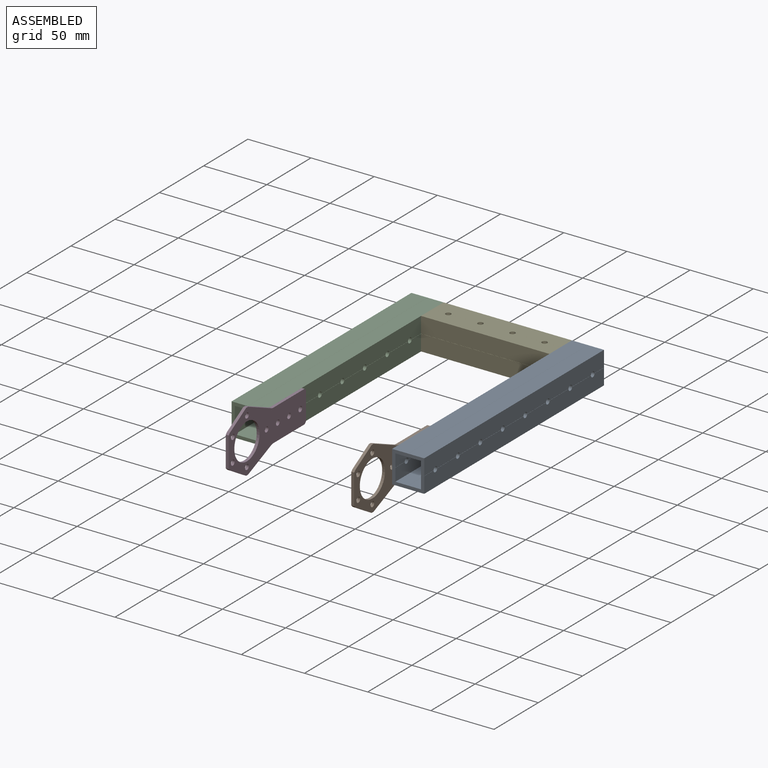
[diagram: assembled view]
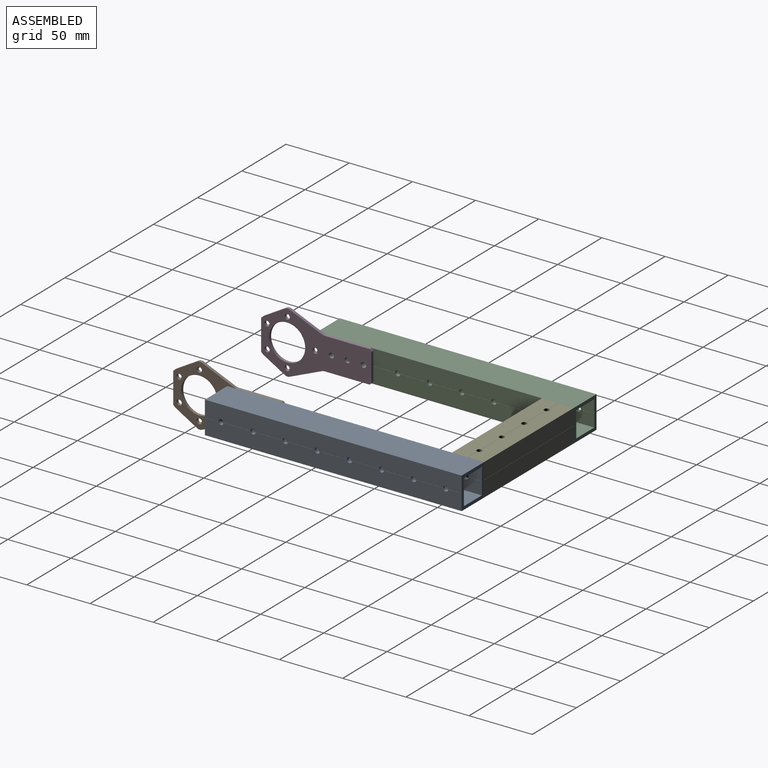
[diagram: assembled view, second angle]
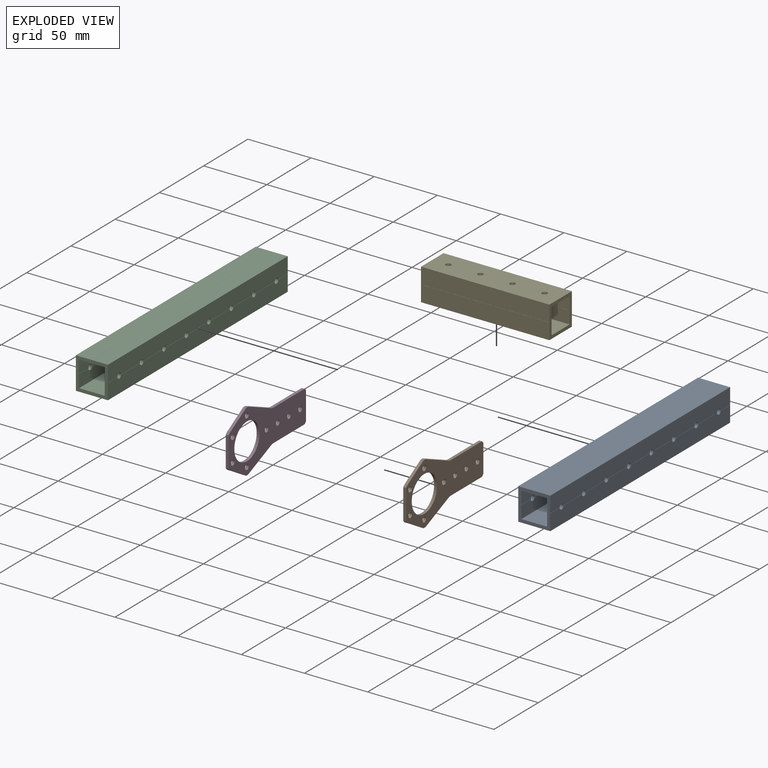
[diagram: exploded view]
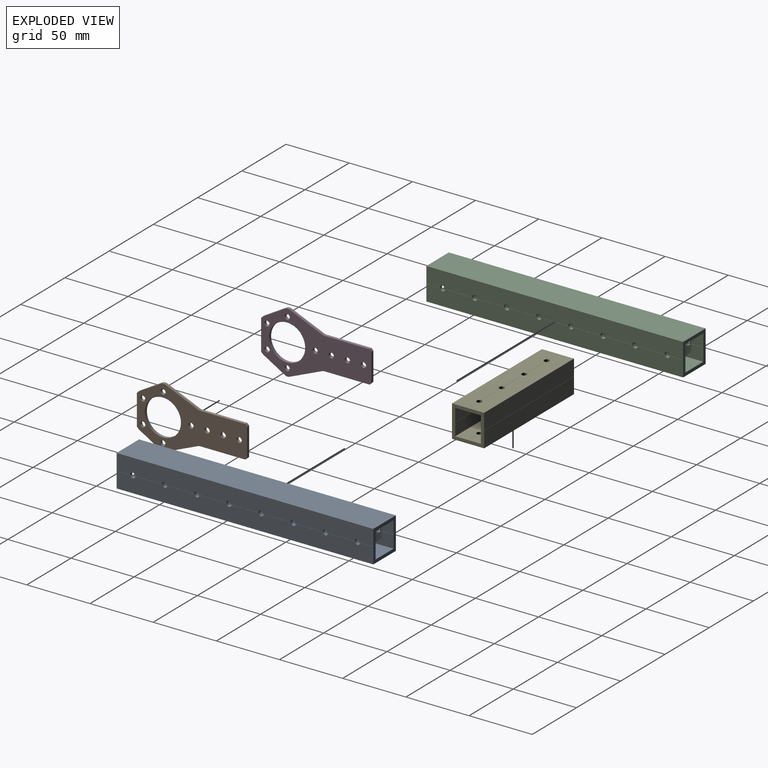
[diagram: exploded view, second angle]
ASSEMBLY  parts=5 mates=4
PART A: 114 faces, bbox 25.4x25.4x203.2 mm
  f0: plane 203.2x12.62mm, normal (0,-1,0), area 2565.2mm2, adj f11,f24,f48,f113
  f1: plane 203.2x12.62mm, normal (0,1,0), area 2565.2mm2, adj f10,f16,f48,f113
  f2: plane 203.2x12.62mm, normal (0,1,0), area 2565.2mm2, adj f5,f17,f48,f113
  f3: plane 203.2x12.62mm, normal (0,-1,0), area 2565.2mm2, adj f8,f25,f48,f113
  f4: plane 203.2x10.08mm, normal (1,0,0), area 1997.7mm2, adj f13,f31,f32,f33,f34,f35,f36,f37
  f5: plane 203.2x12.62mm, normal (-1,0,0), area 2513.8mm2, adj f2,f29,f32,f33,f34,f35,f36,f37
  f6: plane 203.2x10.08mm, normal (0,1,0), area 2049mm2, adj f14,f26,f48,f113
  f7: plane 203.2x10.08mm, normal (-1,0,0), area 1997.7mm2, adj f15,f23,f40,f41,f42,f43,f44,f45
  f8: plane 203.2x12.62mm, normal (1,0,0), area 2513.8mm2, adj f3,f21,f40,f41,f42,f43,f44,f45
  f9: plane 203.2x10.08mm, normal (0,-1,0), area 2049mm2, adj f12,f18,f48,f113
  f10: plane 203.2x12.62mm, normal (1,0,0), area 2513.8mm2, adj f1,f20,f40,f41,f42,f43,f44,f45
  f11: plane 203.2x12.62mm, normal (-1,0,0), area 2513.8mm2, adj f0,f28,f32,f33,f34,f35,f36,f37
  f12: plane 203.2x10.08mm, normal (-1,0,0), area 1997.7mm2, adj f9,f22,f40,f41,f42,f43,f44,f45
  f13: plane 203.2x10.08mm, normal (0,-1,0), area 2049mm2, adj f4,f19,f48,f113
  f14: plane 203.2x10.08mm, normal (1,0,0), area 1997.7mm2, adj f6,f30,f32,f33,f34,f35,f36,f37
  f15: plane 203.2x10.08mm, normal (0,1,0), area 2049mm2, adj f7,f27,f48,f113
  f16: plane 203.2x0.08mm, normal (-0.71,0.71,0), area 21.9mm2, adj f1,f17,f48,f113
  f17: plane 203.2x0.08mm, normal (0.71,0.71,0), area 21.9mm2, adj f2,f16,f48,f113
  f18: plane 203.2x0.08mm, normal (-0.71,-0.71,0), area 21.9mm2, adj f9,f19,f48,f113
  f19: plane 203.2x0.08mm, normal (0.71,-0.71,0), area 21.9mm2, adj f13,f18,f48,f113
  f20: plane 10.63x0.08mm, normal (0.71,-0.71,0), area 1.1mm2, adj f10,f21,f47,f113
  f21: plane 10.63x0.08mm, normal (0.71,0.71,0), area 1.1mm2, adj f8,f20,f47,f113
  f22: plane 10.63x0.08mm, normal (-0.71,-0.71,0), area 1.1mm2, adj f12,f23,f47,f113
  f23: plane 10.63x0.08mm, normal (-0.71,0.71,0), area 1.1mm2, adj f7,f22,f47,f113
  f24: plane 203.2x0.08mm, normal (0.71,-0.71,0), area 21.9mm2, adj f0,f25,f48,f113
  f25: plane 203.2x0.08mm, normal (-0.71,-0.71,0), area 21.9mm2, adj f3,f24,f48,f113
  f26: plane 203.2x0.08mm, normal (0.71,0.71,0), area 21.9mm2, adj f6,f27,f48,f113
  f27: plane 203.2x0.08mm, normal (-0.71,0.71,0), area 21.9mm2, adj f15,f26,f48,f113
  f28: plane 10.63x0.08mm, normal (-0.71,0.71,0), area 1.1mm2, adj f11,f29,f39,f113
  f29: plane 10.63x0.08mm, normal (-0.71,-0.71,0), area 1.1mm2, adj f5,f28,f39,f113
  f30: plane 10.63x0.08mm, normal (0.71,0.71,0), area 1.1mm2, adj f14,f31,f39,f113
  f31: plane 10.63x0.08mm, normal (0.71,-0.71,0), area 1.1mm2, adj f4,f30,f39,f113
  f32: cylinder r=2.07mm len=4.14mm, axis (1,0,0), area 33mm2, adj f4,f5,f11,f14,f81,f82,f83,f84
  f33: cylinder r=2.07mm len=4.14mm, axis (1,0,0), area 33mm2, adj f4,f5,f11,f14,f81,f82,f85,f86
  f34: cylinder r=2.07mm len=4.14mm, axis (1,0,0), area 33mm2, adj f4,f5,f11,f14,f85,f86,f87,f88
  f35: cylinder r=2.07mm len=4.14mm, axis (1,0,0), area 33mm2, adj f4,f5,f11,f14,f87,f88,f89,f90
  f36: cylinder r=2.07mm len=4.14mm, axis (1,0,0), area 33mm2, adj f4,f5,f11,f14,f89,f90,f91,f92
  f37: cylinder r=2.07mm len=4.14mm, axis (1,0,0), area 33mm2, adj f4,f5,f11,f14,f91,f92,f93,f94
  f38: cylinder r=2.07mm len=4.14mm, axis (1,0,0), area 33mm2, adj f4,f5,f11,f14,f93,f94,f95,f96
  f39: cylinder r=2.07mm len=4.14mm, axis (1,0,0), area 33mm2, adj f4,f5,f11,f14,f28,f29,f30,f31
  f40: cylinder r=2.07mm len=4.14mm, axis (1,0,0), area 33mm2, adj f7,f8,f10,f12,f49,f50,f51,f52
  f41: cylinder r=2.07mm len=4.14mm, axis (1,0,0), area 33mm2, adj f7,f8,f10,f12,f51,f52,f53,f54
  f42: cylinder r=2.07mm len=4.14mm, axis (1,0,0), area 33mm2, adj f7,f8,f10,f12,f53,f54,f55,f56
  f43: cylinder r=2.07mm len=4.14mm, axis (1,0,0), area 33mm2, adj f7,f8,f10,f12,f55,f56,f57,f58
  f44: cylinder r=2.07mm len=4.14mm, axis (1,0,0), area 33mm2, adj f7,f8,f10,f12,f57,f58,f59,f60
  f45: cylinder r=2.07mm len=4.14mm, axis (1,0,0), area 33mm2, adj f7,f8,f10,f12,f59,f60,f61,f62
  f46: cylinder r=2.07mm len=4.14mm, axis (1,0,0), area 33mm2, adj f7,f8,f10,f12,f61,f62,f63,f64
  f47: cylinder r=2.07mm len=4.14mm, axis (1,0,0), area 33mm2, adj f7,f8,f10,f12,f20,f21,f22,f23
  f48: plane 25.4x25.4mm, normal (0,0,-1), area 232.2mm2, adj f0,f1,f2,f3,f4,f5,f6,f7
  f49: plane 10.63x0.08mm, normal (0.71,-0.71,0), area 1.1mm2, adj f10,f40,f48,f50
  f50: plane 10.63x0.08mm, normal (0.71,0.71,0), area 1.1mm2, adj f8,f40,f48,f49
  f51: plane 21.26x0.08mm, normal (0.71,-0.71,0), area 2.3mm2, adj f10,f40,f41,f52
  f52: plane 21.26x0.08mm, normal (0.71,0.71,0), area 2.3mm2, adj f8,f40,f41,f51
  f53: plane 21.26x0.08mm, normal (0.71,-0.71,0), area 2.3mm2, adj f10,f41,f42,f54
  f54: plane 21.26x0.08mm, normal (0.71,0.71,0), area 2.3mm2, adj f8,f41,f42,f53
  f55: plane 21.26x0.08mm, normal (0.71,-0.71,0), area 2.3mm2, adj f10,f42,f43,f56
  f56: plane 21.26x0.08mm, normal (0.71,0.71,0), area 2.3mm2, adj f8,f42,f43,f55
  f57: plane 21.26x0.08mm, normal (0.71,-0.71,0), area 2.3mm2, adj f10,f43,f44,f58
  f58: plane 21.26x0.08mm, normal (0.71,0.71,0), area 2.3mm2, adj f8,f43,f44,f57
  f59: plane 21.26x0.08mm, normal (0.71,-0.71,0), area 2.3mm2, adj f10,f44,f45,f60
  f60: plane 21.26x0.08mm, normal (0.71,0.71,0), area 2.3mm2, adj f8,f44,f45,f59
  f61: plane 21.26x0.08mm, normal (0.71,-0.71,0), area 2.3mm2, adj f10,f45,f46,f62
  f62: plane 21.26x0.08mm, normal (0.71,0.71,0), area 2.3mm2, adj f8,f45,f46,f61
  f63: plane 21.26x0.08mm, normal (0.71,-0.71,0), area 2.3mm2, adj f10,f46,f47,f64
  f64: plane 21.26x0.08mm, normal (0.71,0.71,0), area 2.3mm2, adj f8,f46,f47,f63
  f65: plane 10.63x0.08mm, normal (-0.71,-0.71,0), area 1.1mm2, adj f12,f40,f48,f66
  f66: plane 10.63x0.08mm, normal (-0.71,0.71,0), area 1.1mm2, adj f7,f40,f48,f65
  f67: plane 21.26x0.08mm, normal (-0.71,-0.71,0), area 2.3mm2, adj f12,f40,f41,f68
  f68: plane 21.26x0.08mm, normal (-0.71,0.71,0), area 2.3mm2, adj f7,f40,f41,f67
  f69: plane 21.26x0.08mm, normal (-0.71,-0.71,0), area 2.3mm2, adj f12,f41,f42,f70
  f70: plane 21.26x0.08mm, normal (-0.71,0.71,0), area 2.3mm2, adj f7,f41,f42,f69
  f71: plane 21.26x0.08mm, normal (-0.71,-0.71,0), area 2.3mm2, adj f12,f42,f43,f72
  f72: plane 21.26x0.08mm, normal (-0.71,0.71,0), area 2.3mm2, adj f7,f42,f43,f71
  f73: plane 21.26x0.08mm, normal (-0.71,-0.71,0), area 2.3mm2, adj f12,f43,f44,f74
  f74: plane 21.26x0.08mm, normal (-0.71,0.71,0), area 2.3mm2, adj f7,f43,f44,f73
  f75: plane 21.26x0.08mm, normal (-0.71,-0.71,0), area 2.3mm2, adj f12,f44,f45,f76
  f76: plane 21.26x0.08mm, normal (-0.71,0.71,0), area 2.3mm2, adj f7,f44,f45,f75
  f77: plane 21.26x0.08mm, normal (-0.71,-0.71,0), area 2.3mm2, adj f12,f45,f46,f78
  f78: plane 21.26x0.08mm, normal (-0.71,0.71,0), area 2.3mm2, adj f7,f45,f46,f77
  f79: plane 21.26x0.08mm, normal (-0.71,-0.71,0), area 2.3mm2, adj f12,f46,f47,f80
  f80: plane 21.26x0.08mm, normal (-0.71,0.71,0), area 2.3mm2, adj f7,f46,f47,f79
  f81: plane 21.26x0.08mm, normal (-0.71,0.71,0), area 2.3mm2, adj f11,f32,f33,f82
  f82: plane 21.26x0.08mm, normal (-0.71,-0.71,0), area 2.3mm2, adj f5,f32,f33,f81
  f83: plane 10.63x0.08mm, normal (-0.71,0.71,0), area 1.1mm2, adj f11,f32,f48,f84
  f84: plane 10.63x0.08mm, normal (-0.71,-0.71,0), area 1.1mm2, adj f5,f32,f48,f83
  f85: plane 21.26x0.08mm, normal (-0.71,0.71,0), area 2.3mm2, adj f11,f33,f34,f86
  f86: plane 21.26x0.08mm, normal (-0.71,-0.71,0), area 2.3mm2, adj f5,f33,f34,f85
  f87: plane 21.26x0.08mm, normal (-0.71,0.71,0), area 2.3mm2, adj f11,f34,f35,f88
  f88: plane 21.26x0.08mm, normal (-0.71,-0.71,0), area 2.3mm2, adj f5,f34,f35,f87
  f89: plane 21.26x0.08mm, normal (-0.71,0.71,0), area 2.3mm2, adj f11,f35,f36,f90
  f90: plane 21.26x0.08mm, normal (-0.71,-0.71,0), area 2.3mm2, adj f5,f35,f36,f89
  f91: plane 21.26x0.08mm, normal (-0.71,0.71,0), area 2.3mm2, adj f11,f36,f37,f92
  f92: plane 21.26x0.08mm, normal (-0.71,-0.71,0), area 2.3mm2, adj f5,f36,f37,f91
  f93: plane 21.26x0.08mm, normal (-0.71,0.71,0), area 2.3mm2, adj f11,f37,f38,f94
  f94: plane 21.26x0.08mm, normal (-0.71,-0.71,0), area 2.3mm2, adj f5,f37,f38,f93
  f95: plane 21.26x0.08mm, normal (-0.71,0.71,0), area 2.3mm2, adj f11,f38,f39,f96
  f96: plane 21.26x0.08mm, normal (-0.71,-0.71,0), area 2.3mm2, adj f5,f38,f39,f95
  f97: plane 21.26x0.08mm, normal (0.71,0.71,0), area 2.3mm2, adj f14,f32,f33,f98
  f98: plane 21.26x0.08mm, normal (0.71,-0.71,0), area 2.3mm2, adj f4,f32,f33,f97
  f99: plane 10.63x0.08mm, normal (0.71,0.71,0), area 1.1mm2, adj f14,f32,f48,f100
  f100: plane 10.63x0.08mm, normal (0.71,-0.71,0), area 1.1mm2, adj f4,f32,f48,f99
  f101: plane 21.26x0.08mm, normal (0.71,0.71,0), area 2.3mm2, adj f14,f33,f34,f102
  f102: plane 21.26x0.08mm, normal (0.71,-0.71,0), area 2.3mm2, adj f4,f33,f34,f101
  f103: plane 21.26x0.08mm, normal (0.71,0.71,0), area 2.3mm2, adj f14,f34,f35,f104
  f104: plane 21.26x0.08mm, normal (0.71,-0.71,0), area 2.3mm2, adj f4,f34,f35,f103
  f105: plane 21.26x0.08mm, normal (0.71,0.71,0), area 2.3mm2, adj f14,f35,f36,f106
  f106: plane 21.26x0.08mm, normal (0.71,-0.71,0), area 2.3mm2, adj f4,f35,f36,f105
  f107: plane 21.26x0.08mm, normal (0.71,0.71,0), area 2.3mm2, adj f14,f36,f37,f108
  f108: plane 21.26x0.08mm, normal (0.71,-0.71,0), area 2.3mm2, adj f4,f36,f37,f107
  f109: plane 21.26x0.08mm, normal (0.71,0.71,0), area 2.3mm2, adj f14,f37,f38,f110
  f110: plane 21.26x0.08mm, normal (0.71,-0.71,0), area 2.3mm2, adj f4,f37,f38,f109
  f111: plane 21.26x0.08mm, normal (0.71,0.71,0), area 2.3mm2, adj f14,f38,f39,f112
  f112: plane 21.26x0.08mm, normal (0.71,-0.71,0), area 2.3mm2, adj f4,f38,f39,f111
  f113: plane 25.4x25.4mm, normal (0,0,1), area 232.2mm2, adj f0,f1,f2,f3,f4,f5,f6,f7
PART B: 27 faces, bbox 48.6x87.3x2.3 mm
  f0: cylinder r=2.07mm len=4.14mm, axis (0,0,-1), area 29.7mm2, adj f9,f10
  f1: cylinder r=2.07mm len=4.14mm, axis (0,0,-1), area 29.7mm2, adj f9,f10
  f2: cylinder r=2.07mm len=4.14mm, axis (0,0,-1), area 29.7mm2, adj f9,f10
  f3: cylinder r=2.07mm len=4.14mm, axis (0,0,-1), area 29.7mm2, adj f9,f10
  f4: cylinder r=2.07mm len=4.14mm, axis (0,0,-1), area 29.7mm2, adj f9,f10
  f5: cylinder r=2.07mm len=4.14mm, axis (0,0,-1), area 29.7mm2, adj f9,f10
  f6: cylinder r=2.07mm len=4.14mm, axis (0,0,-1), area 29.7mm2, adj f9,f10
  f7: cylinder r=2.07mm len=4.14mm, axis (0,0,-1), area 29.7mm2, adj f9,f10
  f8: cylinder r=14.29mm len=28.58mm, axis (0,0,-1), area 205.2mm2, adj f9,f10
  f9: plane 87.31x48.56mm, normal (0,0,1), area 2060.7mm2, adj f0,f1,f2,f3,f4,f5,f6,f7
  f10: plane 87.31x48.56mm, normal (0,0,-1), area 2060.7mm2, adj f0,f1,f2,f3,f4,f5,f6,f7
  f11: plane 22.35x2.29mm, normal (0,-1,0), area 51.1mm2, adj f9,f10,f25,f26
  f12: plane 35.28x2.29mm, normal (-1,0,0), area 80.7mm2, adj f9,f10,f20,f26
  f13: plane 35.28x2.29mm, normal (1,0,0), area 80.7mm2, adj f9,f10,f19,f25
  f14: plane 18.21x10.69mm, normal (-0.86,0.51,0), area 48.3mm2, adj f9,f10,f21,f24
  f15: plane 26.13x11.08mm, normal (-0.92,-0.39,0), area 64.9mm2, adj f9,f10,f20,f24
  f16: plane 18.21x10.69mm, normal (0.86,0.51,0), area 48.3mm2, adj f9,f10,f22,f23
  f17: plane 26.13x11.08mm, normal (0.92,-0.39,0), area 64.9mm2, adj f9,f10,f19,f23
  f18: plane 24.14x2.29mm, normal (0,1,0), area 55.2mm2, adj f9,f10,f21,f22
  f19: cylinder r=6.35mm len=2.48mm, axis (0,0,1), area 5.8mm2, adj f9,f10,f13,f17
  f20: cylinder r=6.35mm len=2.48mm, axis (0,0,1), area 5.8mm2, adj f9,f10,f12,f15
  f21: plane 2.29x1.53mm, normal (-0.71,0.71,0), area 4.9mm2, adj f9,f10,f14,f18
  f22: plane 2.29x1.53mm, normal (0.71,0.71,0), area 4.9mm2, adj f9,f10,f16,f18
  f23: plane 2.29x2.16mm, normal (1,0,0), area 4.9mm2, adj f9,f10,f16,f17
  f24: plane 2.29x2.16mm, normal (-1,0,0), area 4.9mm2, adj f9,f10,f14,f15
  f25: plane 2.29x1.53mm, normal (0.71,-0.71,0), area 4.9mm2, adj f9,f10,f11,f13
  f26: plane 2.29x1.53mm, normal (-0.71,-0.71,0), area 4.9mm2, adj f9,f10,f11,f12
PART C: same geometry as A
PART D: same geometry as B
PART E: 74 faces, bbox 25.4x25.4x101.6 mm
  f0: plane 101.6x12.62mm, normal (0,-1,0), area 1282.6mm2, adj f11,f20,f40,f73
  f1: plane 101.6x12.62mm, normal (0,1,0), area 1282.6mm2, adj f10,f16,f40,f73
  f2: plane 101.6x12.62mm, normal (0,1,0), area 1282.6mm2, adj f5,f17,f40,f73
  f3: plane 101.6x12.62mm, normal (0,-1,0), area 1282.6mm2, adj f8,f21,f40,f73
  f4: plane 101.6x10.08mm, normal (1,0,0), area 998.9mm2, adj f13,f31,f32,f33,f34,f35,f40,f66
  f5: plane 101.6x12.62mm, normal (-1,0,0), area 1256.9mm2, adj f2,f29,f32,f33,f34,f35,f40,f58
  f6: plane 101.6x10.08mm, normal (0,1,0), area 1024.5mm2, adj f14,f22,f40,f73
  f7: plane 101.6x10.08mm, normal (-1,0,0), area 998.9mm2, adj f15,f27,f36,f37,f38,f39,f40,f50
  f8: plane 101.6x12.62mm, normal (1,0,0), area 1256.9mm2, adj f3,f25,f36,f37,f38,f39,f40,f42
  f9: plane 101.6x10.08mm, normal (0,-1,0), area 1024.5mm2, adj f12,f18,f40,f73
  f10: plane 101.6x12.62mm, normal (1,0,0), area 1256.9mm2, adj f1,f24,f36,f37,f38,f39,f40,f41
  f11: plane 101.6x12.62mm, normal (-1,0,0), area 1256.9mm2, adj f0,f28,f32,f33,f34,f35,f40,f57
  f12: plane 101.6x10.08mm, normal (-1,0,0), area 998.9mm2, adj f9,f26,f36,f37,f38,f39,f40,f49
  f13: plane 101.6x10.08mm, normal (0,-1,0), area 1024.5mm2, adj f4,f19,f40,f73
  f14: plane 101.6x10.08mm, normal (1,0,0), area 998.9mm2, adj f6,f30,f32,f33,f34,f35,f40,f65
  f15: plane 101.6x10.08mm, normal (0,1,0), area 1024.5mm2, adj f7,f23,f40,f73
  f16: plane 101.6x0.08mm, normal (-0.71,0.71,0), area 10.9mm2, adj f1,f17,f40,f73
  f17: plane 101.6x0.08mm, normal (0.71,0.71,0), area 10.9mm2, adj f2,f16,f40,f73
  f18: plane 101.6x0.08mm, normal (-0.71,-0.71,0), area 10.9mm2, adj f9,f19,f40,f73
  f19: plane 101.6x0.08mm, normal (0.71,-0.71,0), area 10.9mm2, adj f13,f18,f40,f73
  f20: plane 101.6x0.08mm, normal (0.71,-0.71,0), area 10.9mm2, adj f0,f21,f40,f73
  f21: plane 101.6x0.08mm, normal (-0.71,-0.71,0), area 10.9mm2, adj f3,f20,f40,f73
  f22: plane 101.6x0.08mm, normal (0.71,0.71,0), area 10.9mm2, adj f6,f23,f40,f73
  f23: plane 101.6x0.08mm, normal (-0.71,0.71,0), area 10.9mm2, adj f15,f22,f40,f73
  f24: plane 10.63x0.08mm, normal (0.71,-0.71,0), area 1.1mm2, adj f10,f25,f39,f73
  f25: plane 10.63x0.08mm, normal (0.71,0.71,0), area 1.1mm2, adj f8,f24,f39,f73
  f26: plane 10.63x0.08mm, normal (-0.71,-0.71,0), area 1.1mm2, adj f12,f27,f39,f73
  f27: plane 10.63x0.08mm, normal (-0.71,0.71,0), area 1.1mm2, adj f7,f26,f39,f73
  f28: plane 10.63x0.08mm, normal (-0.71,0.71,0), area 1.1mm2, adj f11,f29,f35,f73
  f29: plane 10.63x0.08mm, normal (-0.71,-0.71,0), area 1.1mm2, adj f5,f28,f35,f73
  f30: plane 10.63x0.08mm, normal (0.71,0.71,0), area 1.1mm2, adj f14,f31,f35,f73
  f31: plane 10.63x0.08mm, normal (0.71,-0.71,0), area 1.1mm2, adj f4,f30,f35,f73
  f32: cylinder r=2.07mm len=4.14mm, axis (1,0,0), area 33mm2, adj f4,f5,f11,f14,f57,f58,f59,f60
  f33: cylinder r=2.07mm len=4.14mm, axis (1,0,0), area 33mm2, adj f4,f5,f11,f14,f57,f58,f61,f62
  f34: cylinder r=2.07mm len=4.14mm, axis (1,0,0), area 33mm2, adj f4,f5,f11,f14,f61,f62,f63,f64
  f35: cylinder r=2.07mm len=4.14mm, axis (1,0,0), area 33mm2, adj f4,f5,f11,f14,f28,f29,f30,f31
  f36: cylinder r=2.07mm len=4.14mm, axis (1,0,0), area 33mm2, adj f7,f8,f10,f12,f41,f42,f43,f44
  f37: cylinder r=2.07mm len=4.14mm, axis (1,0,0), area 33mm2, adj f7,f8,f10,f12,f43,f44,f45,f46
  f38: cylinder r=2.07mm len=4.14mm, axis (1,0,0), area 33mm2, adj f7,f8,f10,f12,f45,f46,f47,f48
  f39: cylinder r=2.07mm len=4.14mm, axis (1,0,0), area 33mm2, adj f7,f8,f10,f12,f24,f25,f26,f27
  f40: plane 25.4x25.4mm, normal (0,0,-1), area 232.2mm2, adj f0,f1,f2,f3,f4,f5,f6,f7
  f41: plane 10.63x0.08mm, normal (0.71,-0.71,0), area 1.1mm2, adj f10,f36,f40,f42
  f42: plane 10.63x0.08mm, normal (0.71,0.71,0), area 1.1mm2, adj f8,f36,f40,f41
  f43: plane 21.26x0.08mm, normal (0.71,-0.71,0), area 2.3mm2, adj f10,f36,f37,f44
  f44: plane 21.26x0.08mm, normal (0.71,0.71,0), area 2.3mm2, adj f8,f36,f37,f43
  f45: plane 21.26x0.08mm, normal (0.71,-0.71,0), area 2.3mm2, adj f10,f37,f38,f46
  f46: plane 21.26x0.08mm, normal (0.71,0.71,0), area 2.3mm2, adj f8,f37,f38,f45
  f47: plane 21.26x0.08mm, normal (0.71,-0.71,0), area 2.3mm2, adj f10,f38,f39,f48
  f48: plane 21.26x0.08mm, normal (0.71,0.71,0), area 2.3mm2, adj f8,f38,f39,f47
  f49: plane 10.63x0.08mm, normal (-0.71,-0.71,0), area 1.1mm2, adj f12,f36,f40,f50
  f50: plane 10.63x0.08mm, normal (-0.71,0.71,0), area 1.1mm2, adj f7,f36,f40,f49
  f51: plane 21.26x0.08mm, normal (-0.71,-0.71,0), area 2.3mm2, adj f12,f36,f37,f52
  f52: plane 21.26x0.08mm, normal (-0.71,0.71,0), area 2.3mm2, adj f7,f36,f37,f51
  f53: plane 21.26x0.08mm, normal (-0.71,-0.71,0), area 2.3mm2, adj f12,f37,f38,f54
  f54: plane 21.26x0.08mm, normal (-0.71,0.71,0), area 2.3mm2, adj f7,f37,f38,f53
  f55: plane 21.26x0.08mm, normal (-0.71,-0.71,0), area 2.3mm2, adj f12,f38,f39,f56
  f56: plane 21.26x0.08mm, normal (-0.71,0.71,0), area 2.3mm2, adj f7,f38,f39,f55
  f57: plane 21.26x0.08mm, normal (-0.71,0.71,0), area 2.3mm2, adj f11,f32,f33,f58
  f58: plane 21.26x0.08mm, normal (-0.71,-0.71,0), area 2.3mm2, adj f5,f32,f33,f57
  f59: plane 10.63x0.08mm, normal (-0.71,0.71,0), area 1.1mm2, adj f11,f32,f40,f60
  f60: plane 10.63x0.08mm, normal (-0.71,-0.71,0), area 1.1mm2, adj f5,f32,f40,f59
  f61: plane 21.26x0.08mm, normal (-0.71,0.71,0), area 2.3mm2, adj f11,f33,f34,f62
  f62: plane 21.26x0.08mm, normal (-0.71,-0.71,0), area 2.3mm2, adj f5,f33,f34,f61
  f63: plane 21.26x0.08mm, normal (-0.71,0.71,0), area 2.3mm2, adj f11,f34,f35,f64
  f64: plane 21.26x0.08mm, normal (-0.71,-0.71,0), area 2.3mm2, adj f5,f34,f35,f63
  f65: plane 21.26x0.08mm, normal (0.71,0.71,0), area 2.3mm2, adj f14,f32,f33,f66
  f66: plane 21.26x0.08mm, normal (0.71,-0.71,0), area 2.3mm2, adj f4,f32,f33,f65
  f67: plane 10.63x0.08mm, normal (0.71,0.71,0), area 1.1mm2, adj f14,f32,f40,f68
  f68: plane 10.63x0.08mm, normal (0.71,-0.71,0), area 1.1mm2, adj f4,f32,f40,f67
  f69: plane 21.26x0.08mm, normal (0.71,0.71,0), area 2.3mm2, adj f14,f33,f34,f70
  f70: plane 21.26x0.08mm, normal (0.71,-0.71,0), area 2.3mm2, adj f4,f33,f34,f69
  f71: plane 21.26x0.08mm, normal (0.71,0.71,0), area 2.3mm2, adj f14,f34,f35,f72
  f72: plane 21.26x0.08mm, normal (0.71,-0.71,0), area 2.3mm2, adj f4,f34,f35,f71
  f73: plane 25.4x25.4mm, normal (0,0,1), area 232.2mm2, adj f0,f1,f2,f3,f4,f5,f6,f7
PLACE A rot(axis=(0,0.71,0.71),180deg) t=(116.53,585.68,68.47)mm
PLACE B rot(axis=(0.71,0,0.71),180deg) t=(101.54,-185.85,68.47)mm
PLACE C rot(axis=(-1,0,0),90deg) t=(-10.47,585.68,68.47)mm fixed
PLACE D rot(axis=(0.71,0,-0.71),180deg) t=(4.52,-185.85,68.47)mm
PLACE E rot(axis=(0,-1,0),90deg) t=(-645.47,26.88,68.47)mm
MATE fastened D.f6 <-> C.f32  axis (-1,0,0) through (2.23,-150.92,68.47)mm
MATE fastened C.f3 <-> E.f10  axis (0,0,1) through (2.23,39.58,81.17)mm
MATE fastened B.f6 <-> A.f32  axis (1,0,0) through (103.83,-150.92,68.47)mm
MATE fastened E.f10 <-> A.f1  axis (0,0,1) through (103.83,39.58,81.17)mm
